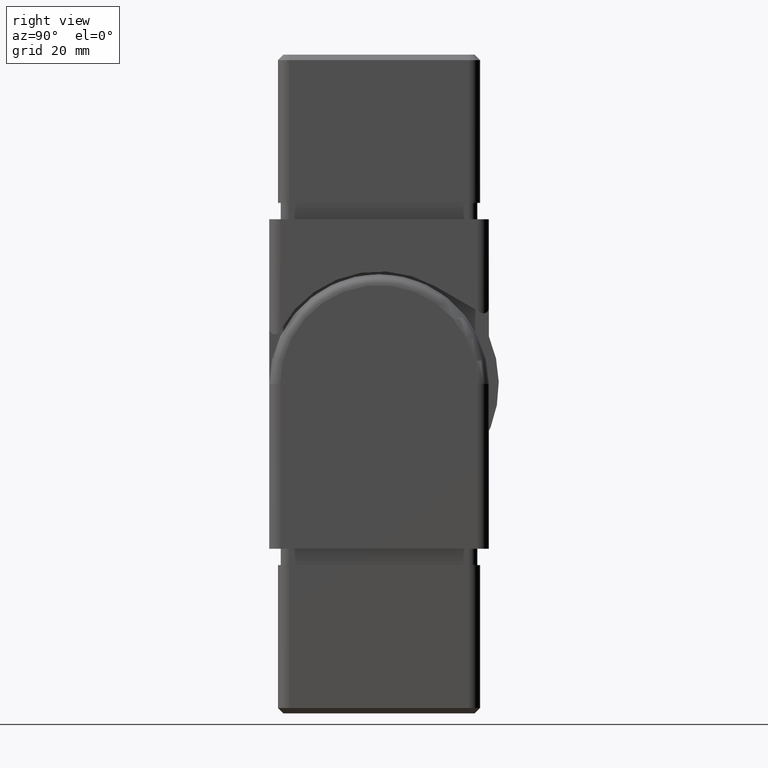
[diagram: clean part render]
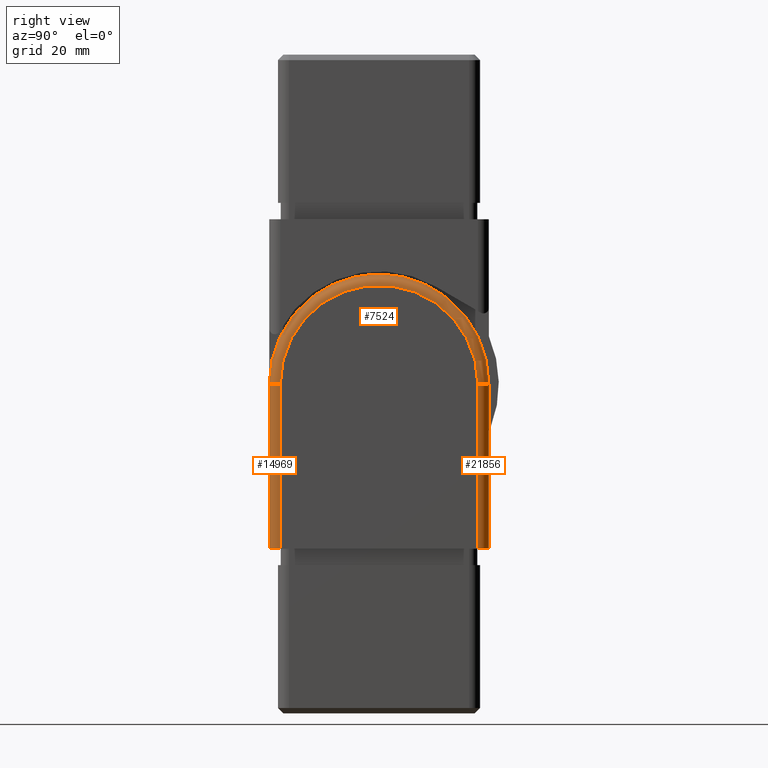
[diagram: same view with one multi-face feature highlighted, each face labeled with its STEP entity id]
A machine part, right view. The highlighted faces form ONE feature: a constant-radius fillet chain: 3 tangent blend faces with common blend radius 2 mm. The faces share edges in the B-rep.
Their STEP definitions:
[1] entity #7524 (Torus):
#118 = DIRECTION ( 'NONE',  ( 0.0000000000000000000, -5.551115123125772800E-017, 1.000000000000000000 ) ) ;
#155 = CIRCLE ( 'NONE', #780, 18.00000000000003200 ) ;
#703 = VERTEX_POINT ( 'NONE', #15059 ) ;
#780 = AXIS2_PLACEMENT_3D ( 'NONE', #21093, #17240, #7209 ) ;
#2231 = AXIS2_PLACEMENT_3D ( 'NONE', #23047, #19015, #11227 ) ;
#3237 = ORIENTED_EDGE ( 'NONE', *, *, #5744, .F. ) ;
#3968 = VERTEX_POINT ( 'NONE', #12413 ) ;
#5471 = AXIS2_PLACEMENT_3D ( 'NONE', #22333, #16023, #118 ) ;
#5480 = CIRCLE ( 'NONE', #2231, 2.000000000000001800 ) ;
#5744 = EDGE_CURVE ( 'NONE', #3968, #703, #12552, .T. ) ;
#7209 = DIRECTION ( 'NONE',  ( 0.0000000000000000000, -5.551115123125774100E-017, 1.000000000000000000 ) ) ;
#7524 = ADVANCED_FACE ( 'NONE', ( #8470 ), #22039, .T. ) ;
#8303 = CARTESIAN_POINT ( 'NONE',  ( -17.99999999999998900, -20.00000000000003600, -30.00000000000006800 ) ) ;
#8470 = FACE_OUTER_BOUND ( 'NONE', #17937, .T. ) ;
#8735 = VERTEX_POINT ( 'NONE', #8303 ) ;
#9464 = CARTESIAN_POINT ( 'NONE',  ( -17.99999999999998900, 1.698124843478632200E-015, -30.00000000000007100 ) ) ;
#10077 = AXIS2_PLACEMENT_3D ( 'NONE', #9464, #15653, #19679 ) ;
#10125 = EDGE_CURVE ( 'NONE', #8735, #3968, #16620, .T. ) ;
#11227 = DIRECTION ( 'NONE',  ( -1.000000000000000000, 0.0000000000000000000, 0.0000000000000000000 ) ) ;
#11395 = CARTESIAN_POINT ( 'NONE',  ( -17.99999999999998900, 18.00000000000006000, -30.00000000000007500 ) ) ;
#12413 = CARTESIAN_POINT ( 'NONE',  ( -17.99999999999998900, 20.00000000000004600, -30.00000000000006800 ) ) ;
#12552 = CIRCLE ( 'NONE', #25067, 2.000000000000001800 ) ;
#13522 = DIRECTION ( 'NONE',  ( 0.0000000000000000000, -5.551115123125772800E-017, 1.000000000000000000 ) ) ;
#14109 = ORIENTED_EDGE ( 'NONE', *, *, #10125, .F. ) ;
#14308 = EDGE_CURVE ( 'NONE', #8735, #14326, #5480, .T. ) ;
#14326 = VERTEX_POINT ( 'NONE', #22693 ) ;
#14797 = ORIENTED_EDGE ( 'NONE', *, *, #14308, .T. ) ;
#15059 = CARTESIAN_POINT ( 'NONE',  ( -19.99999999999998900, 18.00000000000006000, -30.00000000000007500 ) ) ;
#15653 = DIRECTION ( 'NONE',  ( -1.000000000000000000, 0.0000000000000000000, 0.0000000000000000000 ) ) ;
#16023 = DIRECTION ( 'NONE',  ( 1.000000000000000000, -0.0000000000000000000, -0.0000000000000000000 ) ) ;
#16615 = EDGE_CURVE ( 'NONE', #703, #14326, #155, .T. ) ;
#16620 = CIRCLE ( 'NONE', #5471, 20.00000000000003600 ) ;
#17240 = DIRECTION ( 'NONE',  ( -1.000000000000000000, 0.0000000000000000000, 0.0000000000000000000 ) ) ;
#17937 = EDGE_LOOP ( 'NONE', ( #14797, #23989, #3237, #14109 ) ) ;
#19015 = DIRECTION ( 'NONE',  ( 0.0000000000000000000, 5.551115123125772800E-017, -1.000000000000000000 ) ) ;
#19368 = DIRECTION ( 'NONE',  ( 1.000000000000000000, 0.0000000000000000000, 0.0000000000000000000 ) ) ;
#19679 = DIRECTION ( 'NONE',  ( 0.0000000000000000000, -5.551115123125772800E-017, 1.000000000000000000 ) ) ;
#21093 = CARTESIAN_POINT ( 'NONE',  ( -19.99999999999998900, 1.698124843478632200E-015, -30.00000000000007100 ) ) ;
#22039 = TOROIDAL_SURFACE ( 'NONE', #10077, 18.00000000000000400, 2.000000000000000000 ) ;
#22333 = CARTESIAN_POINT ( 'NONE',  ( -17.99999999999998900, 1.698124843478632200E-015, -30.00000000000007100 ) ) ;
#22693 = CARTESIAN_POINT ( 'NONE',  ( -19.99999999999998900, -18.00000000000003600, -30.00000000000008500 ) ) ;
#23047 = CARTESIAN_POINT ( 'NONE',  ( -17.99999999999998900, -18.00000000000003600, -30.00000000000008500 ) ) ;
#23989 = ORIENTED_EDGE ( 'NONE', *, *, #16615, .F. ) ;
#25067 = AXIS2_PLACEMENT_3D ( 'NONE', #11395, #13522, #19368 ) ;
[2] entity #21856 (Cylinder):
#3 = VECTOR ( 'NONE', #21066, 1000.000000000000000 ) ;
#703 = VERTEX_POINT ( 'NONE', #15059 ) ;
#1238 = DIRECTION ( 'NONE',  ( -1.000000000000000000, 0.0000000000000000000, 0.0000000000000000000 ) ) ;
#1956 = VECTOR ( 'NONE', #5188, 1000.000000000000000 ) ;
#2291 = CIRCLE ( 'NONE', #18782, 2.000000000000001800 ) ;
#3440 = CARTESIAN_POINT ( 'NONE',  ( -19.99999999999998900, 18.00000000000004300, 3.469446951953614200E-015 ) ) ;
#3779 = ORIENTED_EDGE ( 'NONE', *, *, #17464, .F. ) ;
#3814 = VERTEX_POINT ( 'NONE', #3440 ) ;
#3968 = VERTEX_POINT ( 'NONE', #12413 ) ;
#5188 = DIRECTION ( 'NONE',  ( -0.0000000000000000000, -5.551115123125772800E-017, 1.000000000000000000 ) ) ;
#5199 = LINE ( 'NONE', #18931, #3 ) ;
#5712 = ORIENTED_EDGE ( 'NONE', *, *, #5744, .T. ) ;
#5719 = ORIENTED_EDGE ( 'NONE', *, *, #18559, .F. ) ;
#5744 = EDGE_CURVE ( 'NONE', #3968, #703, #12552, .T. ) ;
#9081 = DIRECTION ( 'NONE',  ( -1.000000000000000000, 0.0000000000000000000, 0.0000000000000000000 ) ) ;
#11395 = CARTESIAN_POINT ( 'NONE',  ( -17.99999999999998900, 18.00000000000006000, -30.00000000000007500 ) ) ;
#11754 = ORIENTED_EDGE ( 'NONE', *, *, #12945, .F. ) ;
#11818 = LINE ( 'NONE', #25120, #1956 ) ;
#12413 = CARTESIAN_POINT ( 'NONE',  ( -17.99999999999998900, 20.00000000000004600, -30.00000000000006800 ) ) ;
#12552 = CIRCLE ( 'NONE', #25067, 2.000000000000001800 ) ;
#12945 = EDGE_CURVE ( 'NONE', #3814, #703, #5199, .T. ) ;
#12966 = CARTESIAN_POINT ( 'NONE',  ( -17.99999999999998900, 18.00000000000003900, -6.000000000000023100 ) ) ;
#13522 = DIRECTION ( 'NONE',  ( 0.0000000000000000000, -5.551115123125772800E-017, 1.000000000000000000 ) ) ;
#13938 = EDGE_LOOP ( 'NONE', ( #3779, #5719, #5712, #11754 ) ) ;
#15059 = CARTESIAN_POINT ( 'NONE',  ( -19.99999999999998900, 18.00000000000006000, -30.00000000000007500 ) ) ;
#15187 = VERTEX_POINT ( 'NONE', #23410 ) ;
#15746 = FACE_OUTER_BOUND ( 'NONE', #13938, .T. ) ;
#16918 = DIRECTION ( 'NONE',  ( -0.0000000000000000000, -5.551115123125772800E-017, 1.000000000000000000 ) ) ;
#17225 = DIRECTION ( 'NONE',  ( 0.0000000000000000000, 5.551115123125772800E-017, -1.000000000000000000 ) ) ;
#17323 = CYLINDRICAL_SURFACE ( 'NONE', #21149, 2.000000000000001800 ) ;
#17464 = EDGE_CURVE ( 'NONE', #15187, #3814, #2291, .T. ) ;
#18559 = EDGE_CURVE ( 'NONE', #3968, #15187, #11818, .T. ) ;
#18782 = AXIS2_PLACEMENT_3D ( 'NONE', #20788, #16918, #1238 ) ;
#18931 = CARTESIAN_POINT ( 'NONE',  ( -19.99999999999998900, 18.00000000000003900, -6.000000000000023100 ) ) ;
#19368 = DIRECTION ( 'NONE',  ( 1.000000000000000000, 0.0000000000000000000, 0.0000000000000000000 ) ) ;
#20788 = CARTESIAN_POINT ( 'NONE',  ( -17.99999999999998900, 18.00000000000004300, 3.469446951953614200E-015 ) ) ;
#21066 = DIRECTION ( 'NONE',  ( 0.0000000000000000000, 5.551115123125772800E-017, -1.000000000000000000 ) ) ;
#21149 = AXIS2_PLACEMENT_3D ( 'NONE', #12966, #17225, #9081 ) ;
#21856 = ADVANCED_FACE ( 'NONE', ( #15746 ), #17323, .T. ) ;
#23410 = CARTESIAN_POINT ( 'NONE',  ( -17.99999999999998900, 20.00000000000004300, -6.938893903907228400E-015 ) ) ;
#25067 = AXIS2_PLACEMENT_3D ( 'NONE', #11395, #13522, #19368 ) ;
#25120 = CARTESIAN_POINT ( 'NONE',  ( -17.99999999999998900, 20.00000000000003200, -6.000000000000012400 ) ) ;
[3] entity #14969 (Cylinder):
#2231 = AXIS2_PLACEMENT_3D ( 'NONE', #23047, #19015, #11227 ) ;
#2584 = DIRECTION ( 'NONE',  ( -0.0000000000000000000, 5.551115123125772800E-017, -1.000000000000000000 ) ) ;
#2886 = CARTESIAN_POINT ( 'NONE',  ( -17.99999999999998900, -18.00000000000006000, -6.000000000000023100 ) ) ;
#5009 = DIRECTION ( 'NONE',  ( -1.000000000000000000, 0.0000000000000000000, 0.0000000000000000000 ) ) ;
#5102 = FACE_OUTER_BOUND ( 'NONE', #17552, .T. ) ;
#5480 = CIRCLE ( 'NONE', #2231, 2.000000000000001800 ) ;
#5991 = ORIENTED_EDGE ( 'NONE', *, *, #14308, .F. ) ;
#6331 = CARTESIAN_POINT ( 'NONE',  ( -17.99999999999998900, -20.00000000000005300, -6.938893903907228400E-015 ) ) ;
#7477 = ORIENTED_EDGE ( 'NONE', *, *, #18504, .F. ) ;
#7906 = EDGE_CURVE ( 'NONE', #15963, #8735, #20211, .T. ) ;
#8303 = CARTESIAN_POINT ( 'NONE',  ( -17.99999999999998900, -20.00000000000003600, -30.00000000000006800 ) ) ;
#8352 = ORIENTED_EDGE ( 'NONE', *, *, #7906, .F. ) ;
#8735 = VERTEX_POINT ( 'NONE', #8303 ) ;
#10640 = AXIS2_PLACEMENT_3D ( 'NONE', #2886, #18432, #24615 ) ;
#10687 = CYLINDRICAL_SURFACE ( 'NONE', #10640, 2.000000000000001800 ) ;
#11227 = DIRECTION ( 'NONE',  ( -1.000000000000000000, 0.0000000000000000000, 0.0000000000000000000 ) ) ;
#11655 = CARTESIAN_POINT ( 'NONE',  ( -19.99999999999998900, -18.00000000000006000, -6.000000000000023100 ) ) ;
#13030 = CARTESIAN_POINT ( 'NONE',  ( -19.99999999999998900, -18.00000000000005700, 0.0000000000000000000 ) ) ;
#13800 = AXIS2_PLACEMENT_3D ( 'NONE', #22705, #16855, #5009 ) ;
#14308 = EDGE_CURVE ( 'NONE', #8735, #14326, #5480, .T. ) ;
#14326 = VERTEX_POINT ( 'NONE', #22693 ) ;
#14902 = VECTOR ( 'NONE', #23389, 1000.000000000000000 ) ;
#14969 = ADVANCED_FACE ( 'NONE', ( #5102 ), #10687, .T. ) ;
#15963 = VERTEX_POINT ( 'NONE', #6331 ) ;
#16168 = LINE ( 'NONE', #11655, #14902 ) ;
#16855 = DIRECTION ( 'NONE',  ( -0.0000000000000000000, -5.551115123125772800E-017, 1.000000000000000000 ) ) ;
#17552 = EDGE_LOOP ( 'NONE', ( #7477, #17757, #5991, #8352 ) ) ;
#17757 = ORIENTED_EDGE ( 'NONE', *, *, #22247, .F. ) ;
#18432 = DIRECTION ( 'NONE',  ( 0.0000000000000000000, -5.551115123125772800E-017, 1.000000000000000000 ) ) ;
#18504 = EDGE_CURVE ( 'NONE', #24806, #15963, #21076, .T. ) ;
#18975 = VECTOR ( 'NONE', #2584, 1000.000000000000000 ) ;
#19015 = DIRECTION ( 'NONE',  ( 0.0000000000000000000, 5.551115123125772800E-017, -1.000000000000000000 ) ) ;
#20211 = LINE ( 'NONE', #23982, #18975 ) ;
#21076 = CIRCLE ( 'NONE', #13800, 2.000000000000001800 ) ;
#22247 = EDGE_CURVE ( 'NONE', #14326, #24806, #16168, .T. ) ;
#22693 = CARTESIAN_POINT ( 'NONE',  ( -19.99999999999998900, -18.00000000000003600, -30.00000000000008500 ) ) ;
#22705 = CARTESIAN_POINT ( 'NONE',  ( -17.99999999999998900, -18.00000000000005700, 0.0000000000000000000 ) ) ;
#23047 = CARTESIAN_POINT ( 'NONE',  ( -17.99999999999998900, -18.00000000000003600, -30.00000000000008500 ) ) ;
#23389 = DIRECTION ( 'NONE',  ( 0.0000000000000000000, -5.551115123125772800E-017, 1.000000000000000000 ) ) ;
#23982 = CARTESIAN_POINT ( 'NONE',  ( -17.99999999999998900, -20.00000000000005300, -6.000000000000016000 ) ) ;
#24615 = DIRECTION ( 'NONE',  ( 1.000000000000000000, 0.0000000000000000000, 0.0000000000000000000 ) ) ;
#24806 = VERTEX_POINT ( 'NONE', #13030 ) ;